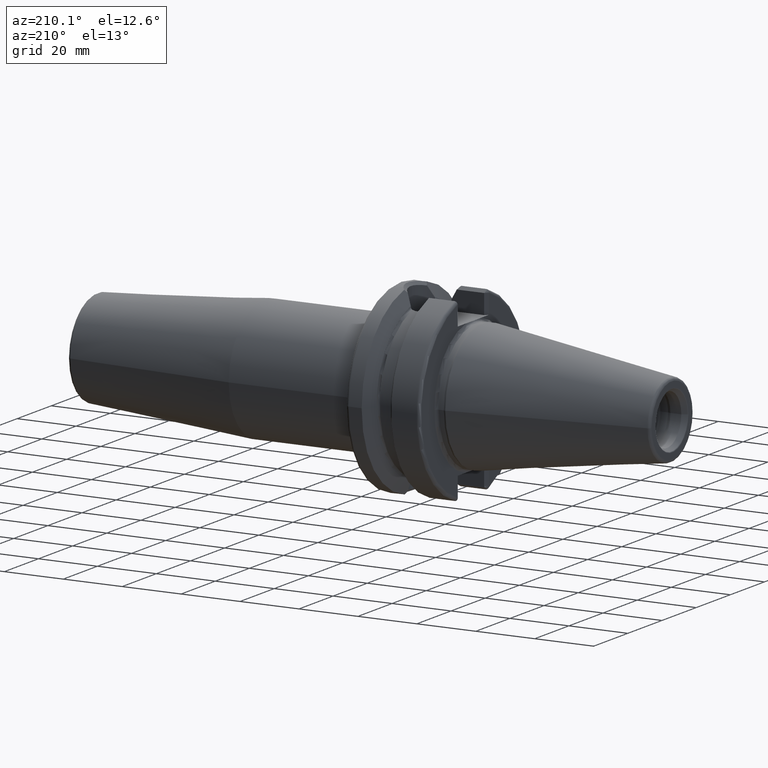
[diagram: clean part render]
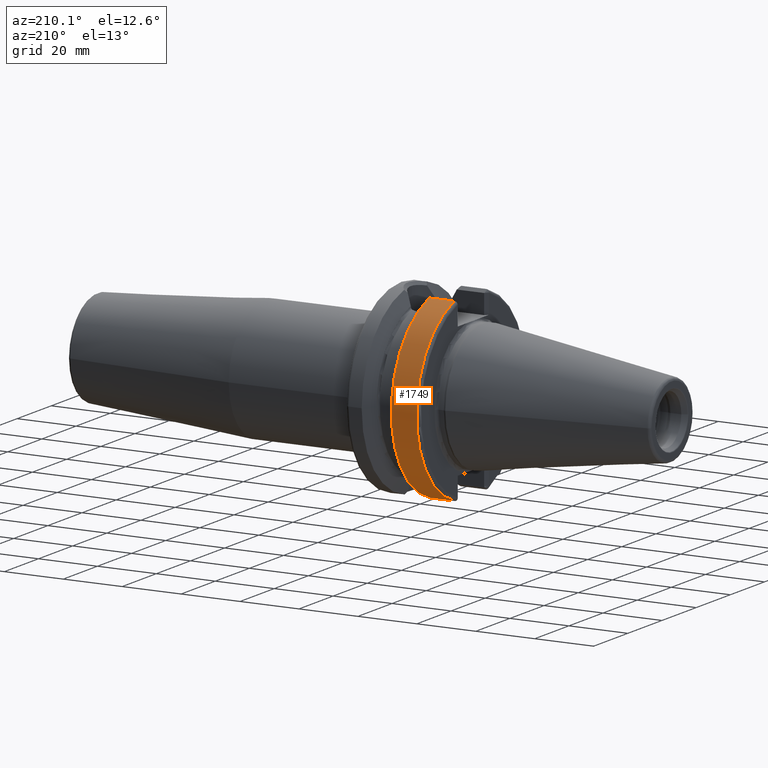
[diagram: same view with one face highlighted and labeled with its STEP entity id]
A machine part, auxiliary view. The second image highlights one B-rep face of the part: STEP entity #1749.
In plain terms, the highlighted cylindrical surface (partial cylindrical patch) has radius 31.4875 mm, axis along (1, 0, 0).
Its self-contained STEP definition (entity closure, byte-faithful):
#228=CARTESIAN_POINT('',(3.E0,0.E0,0.E0));
#229=DIRECTION('',(-1.E0,0.E0,0.E0));
#230=DIRECTION('',(0.E0,2.983189831898E-1,9.544662300305E-1));
#231=AXIS2_PLACEMENT_3D('',#228,#229,#230);
#233=DIRECTION('',(-9.999999999998E-1,-3.572441515959E-7,-4.802508939409E-7));
#234=VECTOR('',#233,8.572722533299E0);
#235=CARTESIAN_POINT('',(1.157272253103E1,9.052779463114E0,-3.015808084481E1));
#236=LINE('',#235,#234);
#237=CARTESIAN_POINT('',(1.157272253103E1,0.E0,0.E0));
#238=DIRECTION('',(1.E0,0.E0,0.E0));
#239=DIRECTION('',(0.E0,2.875039130802E-1,-9.577794631143E-1));
#240=AXIS2_PLACEMENT_3D('',#237,#238,#239);
#242=DIRECTION('',(9.999999999911E-1,2.496639373931E-6,-3.395432034657E-6));
#243=VECTOR('',#242,8.572722551500E0);
#244=CARTESIAN_POINT('',(2.999999979607E0,9.393297580193E0,3.005378452618E1));
#245=LINE('',#244,#243);
#576=CARTESIAN_POINT('',(2.999999997734E0,9.052776400559E0,-3.015808496187E1));
#1344=CARTESIAN_POINT('',(1.157272253103E1,9.052779463114E0,-3.015808084481E1));
#1345=CARTESIAN_POINT('',(1.157272253103E1,9.393318983190E0,3.005375541808E1));
#1346=VERTEX_POINT('',#1344);
#1347=VERTEX_POINT('',#1345);
#1359=CARTESIAN_POINT('',(3.E0,9.393347656107E0,3.005374645633E1));
#1361=VERTEX_POINT('',#1359);
#1376=VERTEX_POINT('',#576);
#1735=CARTESIAN_POINT('',(-7.002E1,0.E0,0.E0));
#1736=DIRECTION('',(1.E0,0.E0,0.E0));
#1737=DIRECTION('',(0.E0,-1.E0,0.E0));
#1738=AXIS2_PLACEMENT_3D('',#1735,#1736,#1737);
#1739=CYLINDRICAL_SURFACE('',#1738,3.14875E1);
#1741=ORIENTED_EDGE('',*,*,#1740,.T.);
#1743=ORIENTED_EDGE('',*,*,#1742,.F.);
#1744=ORIENTED_EDGE('',*,*,#1688,.T.);
#1746=ORIENTED_EDGE('',*,*,#1745,.F.);
#1747=EDGE_LOOP('',(#1741,#1743,#1744,#1746));
#1748=FACE_OUTER_BOUND('',#1747,.F.);
#1749=ADVANCED_FACE('',(#1748),#1739,.T.);
#232=CIRCLE('',#231,3.14875E1);
#241=CIRCLE('',#240,3.14875E1);
#1688=EDGE_CURVE('',#1346,#1347,#241,.T.);
#1740=EDGE_CURVE('',#1361,#1376,#232,.T.);
#1742=EDGE_CURVE('',#1346,#1376,#236,.T.);
#1745=EDGE_CURVE('',#1361,#1347,#245,.T.);